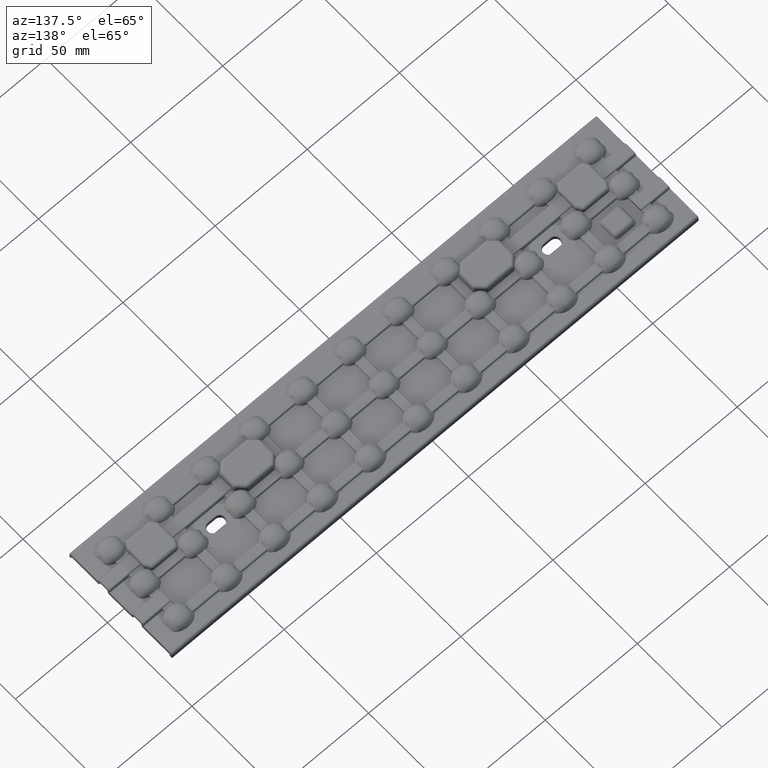
[diagram: clean part render]
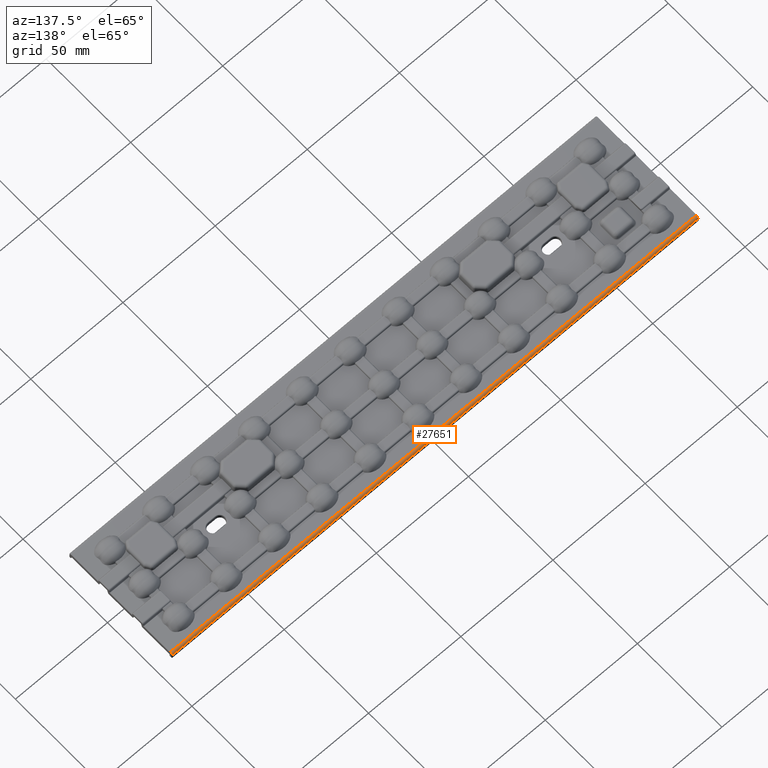
[diagram: same view with one face highlighted and labeled with its STEP entity id]
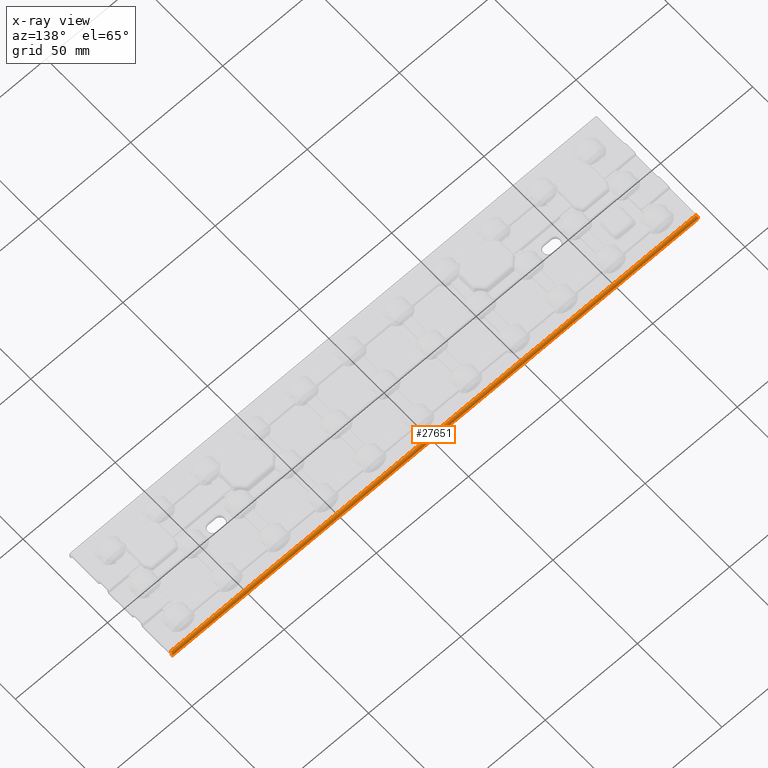
[diagram: x-ray of the same camera — body ghosted, the highlighted face saturated]
A machine part, auxiliary view. The second image highlights one B-rep face of the part: STEP entity #27651.
The next image is the same camera in x-ray: the body ghosted, the highlighted face saturated — about 0% of this face is hidden behind the body in this view.
In plain terms, the highlighted cylindrical surface (edge-blend (fillet) strip) has radius 1.25 mm, axis along (-1, 0, 0).
Its self-contained STEP definition (entity closure, byte-faithful):
#2401 = DIRECTION ( 'NONE',  ( 1.000000000000000000, -0.0000000000000000000, -0.0000000000000000000 ) ) ;
#2543 = CARTESIAN_POINT ( 'NONE',  ( 142.5102327765253000, 30.40203620445798200, 1.505316061697148600 ) ) ;
#3342 = VERTEX_POINT ( 'NONE', #66763 ) ;
#4690 =( BOUNDED_CURVE ( )  B_SPLINE_CURVE ( 3, ( #7100, #46966, #52716, #18517 ),
 .UNSPECIFIED., .F., .T. ) 
 B_SPLINE_CURVE_WITH_KNOTS ( ( 4, 4 ),
 ( 1.605702911834784100, 3.141592653589793100 ),
 .UNSPECIFIED. ) 
 CURVE ( )  GEOMETRIC_REPRESENTATION_ITEM ( )  RATIONAL_B_SPLINE_CURVE ( ( 1.000000000000000000, 0.8128932002257676100, 0.8128932002257676100, 1.000000000000000000 ) ) 
 REPRESENTATION_ITEM ( '' )  );
#6090 = VECTOR ( 'NONE', #2401, 1000.000000000000000 ) ;
#6792 = CARTESIAN_POINT ( 'NONE',  ( 142.4984859507544300, 29.88977599060007200, 2.000000000000000000 ) ) ;
#7100 = CARTESIAN_POINT ( 'NONE',  ( -142.5271326951346100, 30.42688902594225900, 0.7936243708781263200 ) ) ;
#8098 = CARTESIAN_POINT ( 'NONE',  ( 142.8847614606772000, 30.42688902594225900, 0.7936243708781263200 ) ) ;
#14487 = DIRECTION ( 'NONE',  ( -1.000000000000000000, 0.0000000000000000000, 0.0000000000000000000 ) ) ;
#18517 = CARTESIAN_POINT ( 'NONE',  ( -142.4984859507544300, 29.17765049216839300, 2.000000000000000000 ) ) ;
#18931 = VECTOR ( 'NONE', #64743, 1000.000000000000000 ) ;
#20160 = CARTESIAN_POINT ( 'NONE',  ( 0.0000000000000000000, 29.17765049216839300, 0.7500000000000000000 ) ) ;
#24250 = EDGE_CURVE ( 'NONE', #34013, #56175, #52813, .T. ) ;
#24695 = EDGE_CURVE ( 'NONE', #3342, #27698, #4690, .T. ) ;
#25217 = ORIENTED_EDGE ( 'NONE', *, *, #24695, .T. ) ;
#25432 = CARTESIAN_POINT ( 'NONE',  ( 142.5271326951346400, 30.42688902594225900, 0.7936243708781263200 ) ) ;
#27651 = ADVANCED_FACE ( 'NONE', ( #40933 ), #54316, .T. ) ;
#27698 = VERTEX_POINT ( 'NONE', #43623 ) ;
#34013 = VERTEX_POINT ( 'NONE', #40947 ) ;
#34262 = EDGE_LOOP ( 'NONE', ( #70449, #63456, #43018, #25217 ) ) ;
#35139 = CARTESIAN_POINT ( 'NONE',  ( 142.4984859507544300, 29.17765049216839300, 2.000000000000000000 ) ) ;
#37644 = EDGE_CURVE ( 'NONE', #34013, #27698, #45693, .T. ) ;
#37927 = EDGE_CURVE ( 'NONE', #3342, #56175, #51574, .T. ) ;
#40933 = FACE_OUTER_BOUND ( 'NONE', #34262, .T. ) ;
#40947 = CARTESIAN_POINT ( 'NONE',  ( 142.4984859507544300, 29.17765049216839300, 2.000000000000000000 ) ) ;
#43018 = ORIENTED_EDGE ( 'NONE', *, *, #37927, .F. ) ;
#43623 = CARTESIAN_POINT ( 'NONE',  ( -142.4984859507544300, 29.17765049216839300, 2.000000000000000000 ) ) ;
#45693 = LINE ( 'NONE', #47822, #18931 ) ;
#46966 = CARTESIAN_POINT ( 'NONE',  ( -142.5102327765253600, 30.40203620445797500, 1.505316061697148800 ) ) ;
#47822 = CARTESIAN_POINT ( 'NONE',  ( -142.8847614606772000, 29.17765049216839300, 2.000000000000000000 ) ) ;
#48571 = AXIS2_PLACEMENT_3D ( 'NONE', #20160, #14487, #54349 ) ;
#51574 = LINE ( 'NONE', #8098, #6090 ) ;
#52716 = CARTESIAN_POINT ( 'NONE',  ( -142.4984859507544600, 29.88977599060007900, 2.000000000000000000 ) ) ;
#52813 =( BOUNDED_CURVE ( )  B_SPLINE_CURVE ( 3, ( #35139, #6792, #2543, #25432 ),
 .UNSPECIFIED., .F., .F. ) 
 B_SPLINE_CURVE_WITH_KNOTS ( ( 4, 4 ),
 ( 0.0000000000000000000, 1.535889741755009700 ),
 .UNSPECIFIED. ) 
 CURVE ( )  GEOMETRIC_REPRESENTATION_ITEM ( )  RATIONAL_B_SPLINE_CURVE ( ( 1.000000000000000000, 0.8128932002257675000, 0.8128932002257675000, 1.000000000000000000 ) ) 
 REPRESENTATION_ITEM ( '' )  );
#54316 = CYLINDRICAL_SURFACE ( 'NONE', #48571, 1.250000000000000000 ) ;
#54349 = DIRECTION ( 'NONE',  ( 0.0000000000000000000, 0.0000000000000000000, 1.000000000000000000 ) ) ;
#56175 = VERTEX_POINT ( 'NONE', #70284 ) ;
#63456 = ORIENTED_EDGE ( 'NONE', *, *, #24250, .T. ) ;
#64743 = DIRECTION ( 'NONE',  ( -1.000000000000000000, 0.0000000000000000000, -0.0000000000000000000 ) ) ;
#66763 = CARTESIAN_POINT ( 'NONE',  ( -142.5271326951346100, 30.42688902594225900, 0.7936243708781263200 ) ) ;
#70284 = CARTESIAN_POINT ( 'NONE',  ( 142.5271326951346400, 30.42688902594225900, 0.7936243708781263200 ) ) ;
#70449 = ORIENTED_EDGE ( 'NONE', *, *, #37644, .F. ) ;